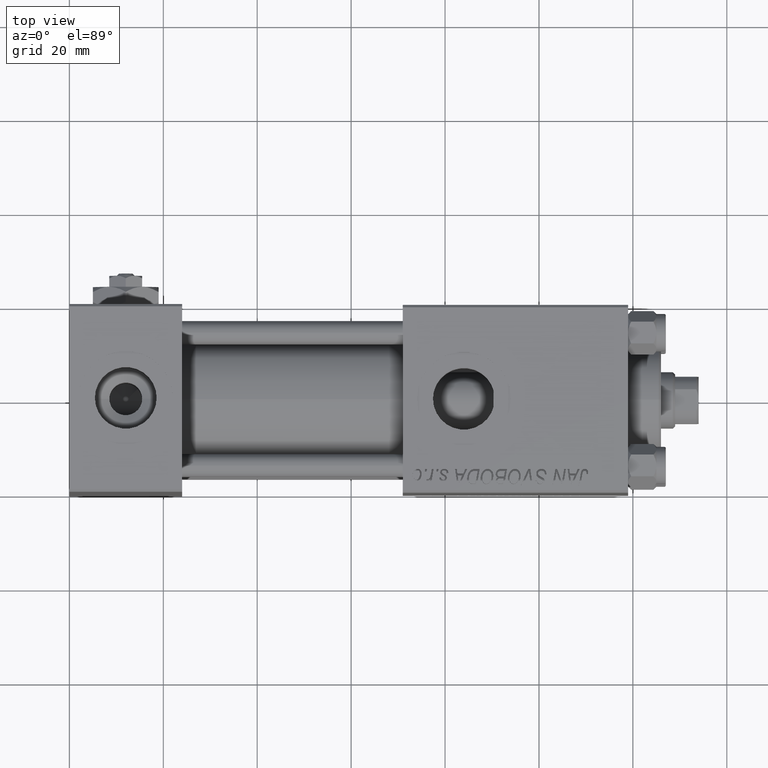
[diagram: clean part render]
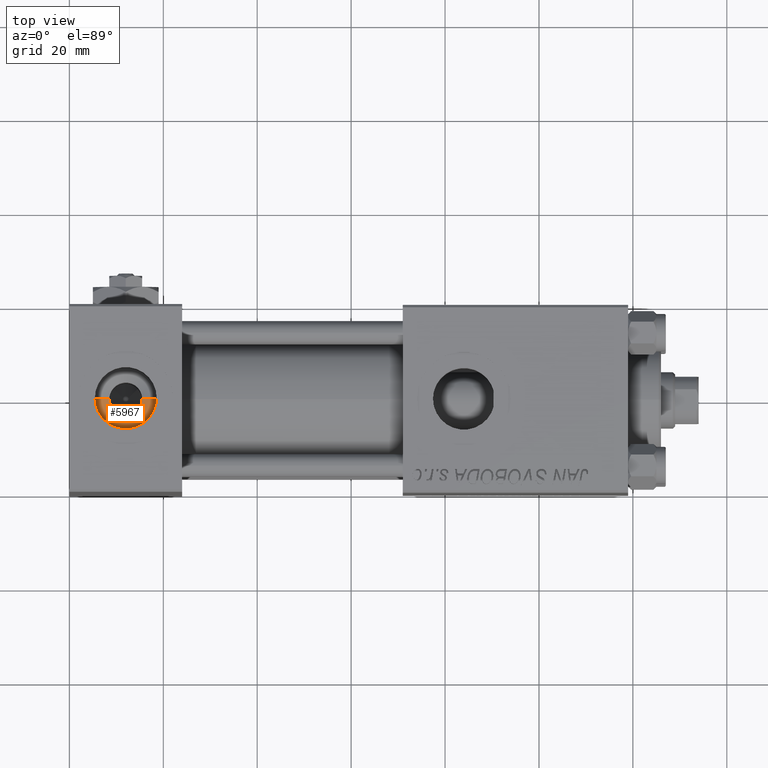
[diagram: same view with one face highlighted and labeled with its STEP entity id]
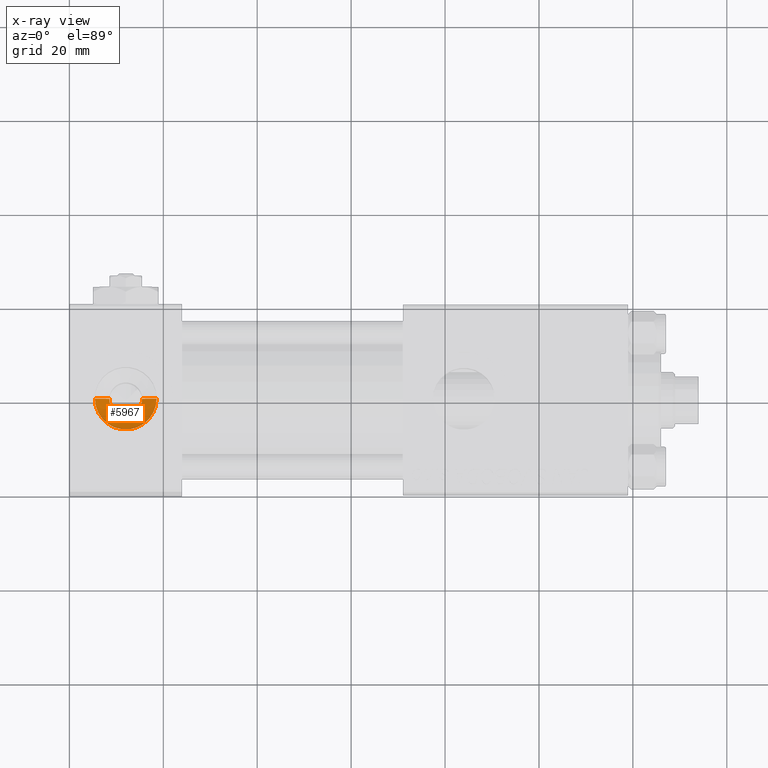
[diagram: x-ray of the same camera — body ghosted, the highlighted face saturated]
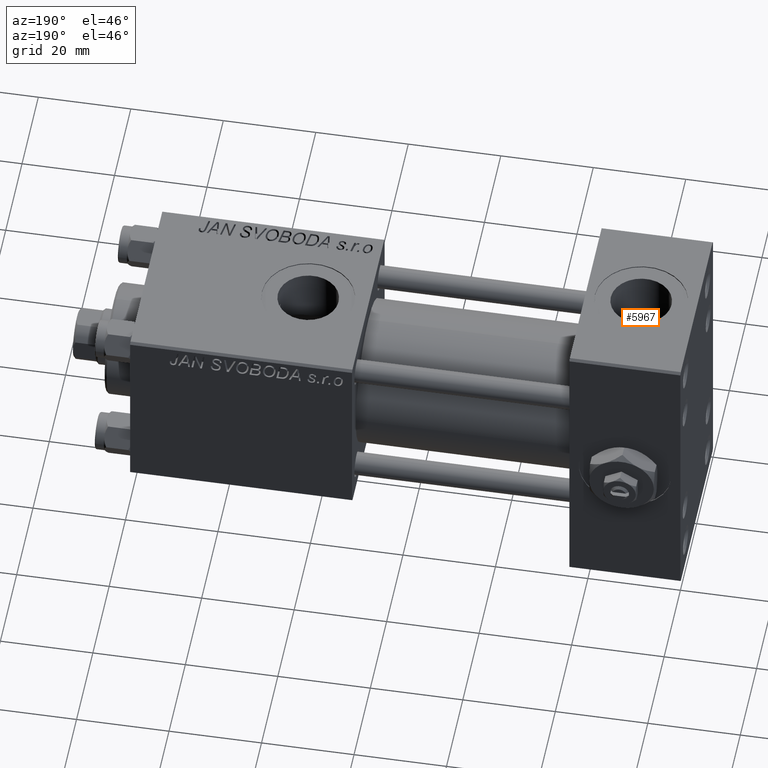
[diagram: same view with one face highlighted and labeled with its STEP entity id]
A machine part, top view. The second image highlights one B-rep face of the part: STEP entity #5967.
The next image is the same camera in x-ray: the body ghosted, the highlighted face saturated — about 0% of this face is hidden behind the body in this view.
A second angle (auxiliary view) of the same face is appended — the face is thin or edge-on in the first view.
In plain terms, the highlighted conical surface has half-angle 60.452 deg.
Its self-contained STEP definition (entity closure, byte-faithful):
#727 = VECTOR ( 'NONE', #39935, 1000.000000000000000 ) ;
#3415 = CARTESIAN_POINT ( 'NONE',  ( 8.500000000000000000, 5.632796807631995091E-15, 19.41999999999999815 ) ) ;
#4538 = CONICAL_SURFACE ( 'NONE', #37872, 3.499999999999999556, 1.055086625138361267 ) ;
#4820 = EDGE_CURVE ( 'NONE', #36931, #23596, #31230, .T. ) ;
#5967 = ADVANCED_FACE ( 'NONE', ( #23999 ), #4538, .F. ) ;
#12983 = VERTEX_POINT ( 'NONE', #17595 ) ;
#13097 = DIRECTION ( 'NONE',  ( -0.000000000000000000, -0.000000000000000000, -1.000000000000000000 ) ) ;
#16413 = VECTOR ( 'NONE', #45595, 1000.000000000000000 ) ;
#17283 = ORIENTED_EDGE ( 'NONE', *, *, #20799, .T. ) ;
#17595 = CARTESIAN_POINT ( 'NONE',  ( 8.500000000000000000, 5.632796807631995091E-15, 19.41999999999999815 ) ) ;
#18008 = AXIS2_PLACEMENT_3D ( 'NONE', #35329, #47612, #46580 ) ;
#18164 = LINE ( 'NONE', #29634, #16413 ) ;
#20799 = EDGE_CURVE ( 'NONE', #12983, #23596, #47534, .T. ) ;
#22738 = ORIENTED_EDGE ( 'NONE', *, *, #32754, .F. ) ;
#22899 = CARTESIAN_POINT ( 'NONE',  ( 18.57999999999999829, 5.204170427930421283E-15, 21.16598726114649764 ) ) ;
#23596 = VERTEX_POINT ( 'NONE', #37601 ) ;
#23999 = FACE_OUTER_BOUND ( 'NONE', #46799, .T. ) ;
#24641 = CARTESIAN_POINT ( 'NONE',  ( 15.50000000000000000, 5.204170427930421283E-15, 19.41999999999999815 ) ) ;
#28165 = DIRECTION ( 'NONE',  ( 1.000000000000000000, 0.000000000000000000, 0.000000000000000000 ) ) ;
#29634 = CARTESIAN_POINT ( 'NONE',  ( 15.50000000000000000, 5.204170427930421283E-15, 19.41999999999999815 ) ) ;
#30401 = EDGE_CURVE ( 'NONE', #12983, #38254, #38033, .T. ) ;
#30807 = ORIENTED_EDGE ( 'NONE', *, *, #4820, .F. ) ;
#31230 = CIRCLE ( 'NONE', #47957, 6.579999999999999183 ) ;
#32754 = EDGE_CURVE ( 'NONE', #38254, #36931, #18164, .T. ) ;
#35329 = CARTESIAN_POINT ( 'NONE',  ( 12.00000000000000000, 5.204170427930421283E-15, 19.41999999999999815 ) ) ;
#36833 = ORIENTED_EDGE ( 'NONE', *, *, #30401, .F. ) ;
#36931 = VERTEX_POINT ( 'NONE', #22899 ) ;
#37601 = CARTESIAN_POINT ( 'NONE',  ( 5.420000000000000817, 6.009988021769379536E-15, 21.16598726114649764 ) ) ;
#37872 = AXIS2_PLACEMENT_3D ( 'NONE', #48309, #39940, #28165 ) ;
#38033 = CIRCLE ( 'NONE', #18008, 3.499999999999999556 ) ;
#38254 = VERTEX_POINT ( 'NONE', #24641 ) ;
#39935 = DIRECTION ( 'NONE',  ( -0.8699429503561852961, 1.065372849594507103E-16, 0.4931523731318503412 ) ) ;
#39940 = DIRECTION ( 'NONE',  ( 0.000000000000000000, 0.000000000000000000, 1.000000000000000000 ) ) ;
#41281 = CARTESIAN_POINT ( 'NONE',  ( 12.00000000000000000, 5.204170427930421283E-15, 21.16598726114649764 ) ) ;
#45200 = DIRECTION ( 'NONE',  ( 1.000000000000000000, 0.000000000000000000, 0.000000000000000000 ) ) ;
#45595 = DIRECTION ( 'NONE',  ( 0.8699429503561852961, 0.000000000000000000, 0.4931523731318503412 ) ) ;
#46580 = DIRECTION ( 'NONE',  ( 1.000000000000000000, 0.000000000000000000, 0.000000000000000000 ) ) ;
#46799 = EDGE_LOOP ( 'NONE', ( #36833, #17283, #30807, #22738 ) ) ;
#47534 = LINE ( 'NONE', #3415, #727 ) ;
#47612 = DIRECTION ( 'NONE',  ( 0.000000000000000000, 0.000000000000000000, 1.000000000000000000 ) ) ;
#47957 = AXIS2_PLACEMENT_3D ( 'NONE', #41281, #13097, #45200 ) ;
#48309 = CARTESIAN_POINT ( 'NONE',  ( 12.00000000000000000, 5.204170427930421283E-15, 19.41999999999999815 ) ) ;